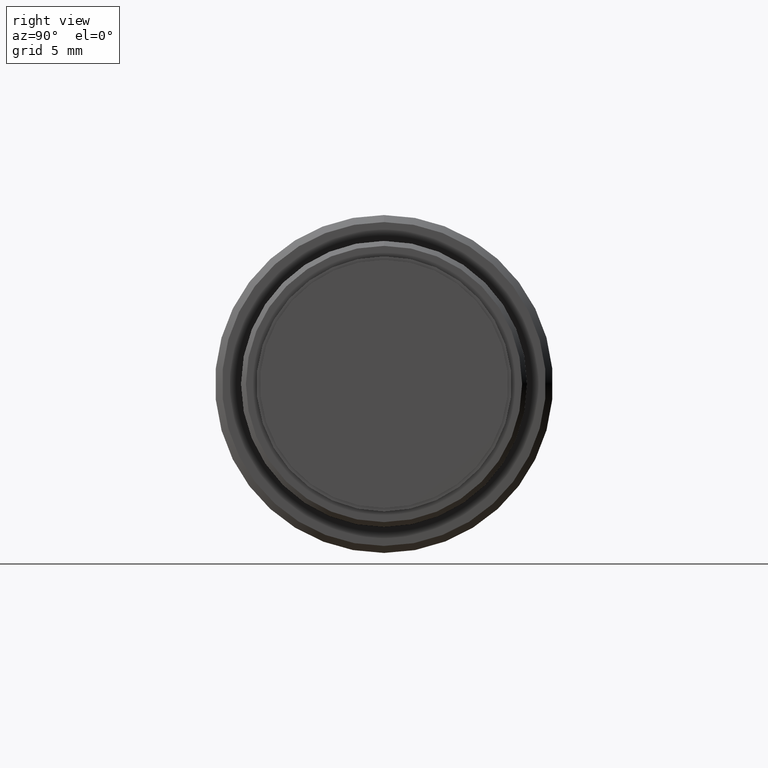
[diagram: clean part render]
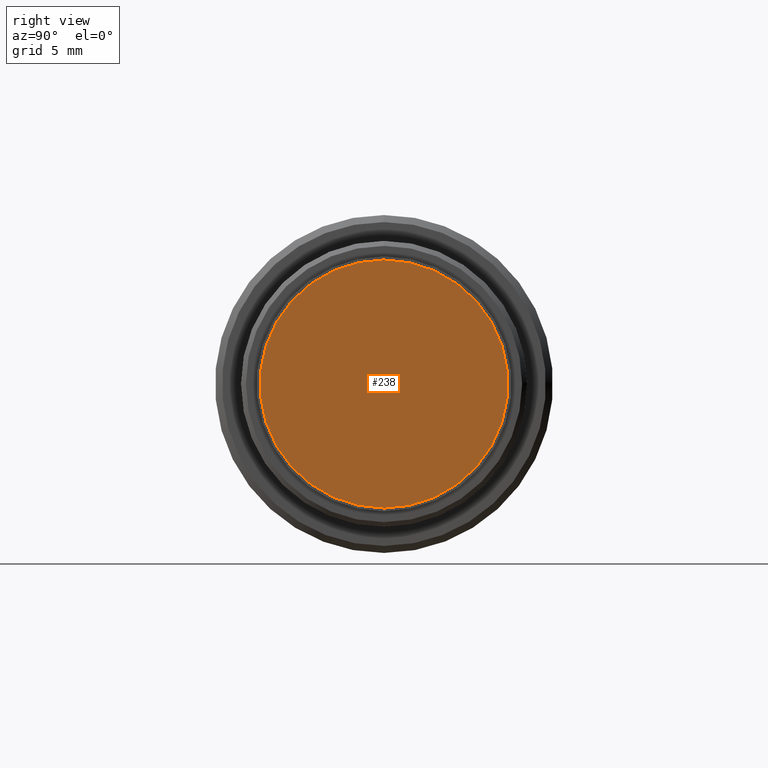
[diagram: same view with one face highlighted and labeled with its STEP entity id]
A machine part, right view. The second image highlights one B-rep face of the part: STEP entity #238.
In plain terms, the highlighted planar face has unit normal (1, 0, 0).
Its self-contained STEP definition (entity closure, byte-faithful):
#18 = DIRECTION ( 'NONE',  ( 1.000000000000000000, 0.000000000000000000, 0.000000000000000000 ) ) ;
#80 = AXIS2_PLACEMENT_3D ( 'NONE', #427, #276, #812 ) ;
#125 = PLANE ( 'NONE',  #80 ) ;
#168 = ORIENTED_EDGE ( 'NONE', *, *, #843, .T. ) ;
#238 = ADVANCED_FACE ( 'NONE', ( #292 ), #125, .T. ) ;
#243 = EDGE_CURVE ( 'NONE', #892, #740, #391, .T. ) ;
#276 = DIRECTION ( 'NONE',  ( 1.000000000000000000, 0.000000000000000000, 0.000000000000000000 ) ) ;
#292 = FACE_OUTER_BOUND ( 'NONE', #958, .T. ) ;
#305 = CARTESIAN_POINT ( 'NONE',  ( 0.000000000000000000, 1.078913830048817981E-15, 8.810000000000000497 ) ) ;
#337 = ORIENTED_EDGE ( 'NONE', *, *, #243, .T. ) ;
#355 = CARTESIAN_POINT ( 'NONE',  ( 0.000000000000000000, 0.000000000000000000, -8.810000000000000497 ) ) ;
#359 = AXIS2_PLACEMENT_3D ( 'NONE', #583, #883, #803 ) ;
#391 = CIRCLE ( 'NONE', #359, 8.810000000000000497 ) ;
#427 = CARTESIAN_POINT ( 'NONE',  ( 2.663231923385820231E-16, 8.810000000000000497, 0.000000000000000000 ) ) ;
#456 = DIRECTION ( 'NONE',  ( 0.000000000000000000, 0.000000000000000000, -1.000000000000000000 ) ) ;
#521 = CARTESIAN_POINT ( 'NONE',  ( 0.000000000000000000, 0.000000000000000000, 0.000000000000000000 ) ) ;
#583 = CARTESIAN_POINT ( 'NONE',  ( 0.000000000000000000, 0.000000000000000000, 0.000000000000000000 ) ) ;
#683 = AXIS2_PLACEMENT_3D ( 'NONE', #521, #18, #456 ) ;
#740 = VERTEX_POINT ( 'NONE', #355 ) ;
#803 = DIRECTION ( 'NONE',  ( 0.000000000000000000, 0.000000000000000000, -1.000000000000000000 ) ) ;
#812 = DIRECTION ( 'NONE',  ( 0.000000000000000000, 1.000000000000000000, 0.000000000000000000 ) ) ;
#843 = EDGE_CURVE ( 'NONE', #740, #892, #904, .T. ) ;
#883 = DIRECTION ( 'NONE',  ( 1.000000000000000000, 0.000000000000000000, 0.000000000000000000 ) ) ;
#892 = VERTEX_POINT ( 'NONE', #305 ) ;
#904 = CIRCLE ( 'NONE', #683, 8.810000000000000497 ) ;
#958 = EDGE_LOOP ( 'NONE', ( #168, #337 ) ) ;